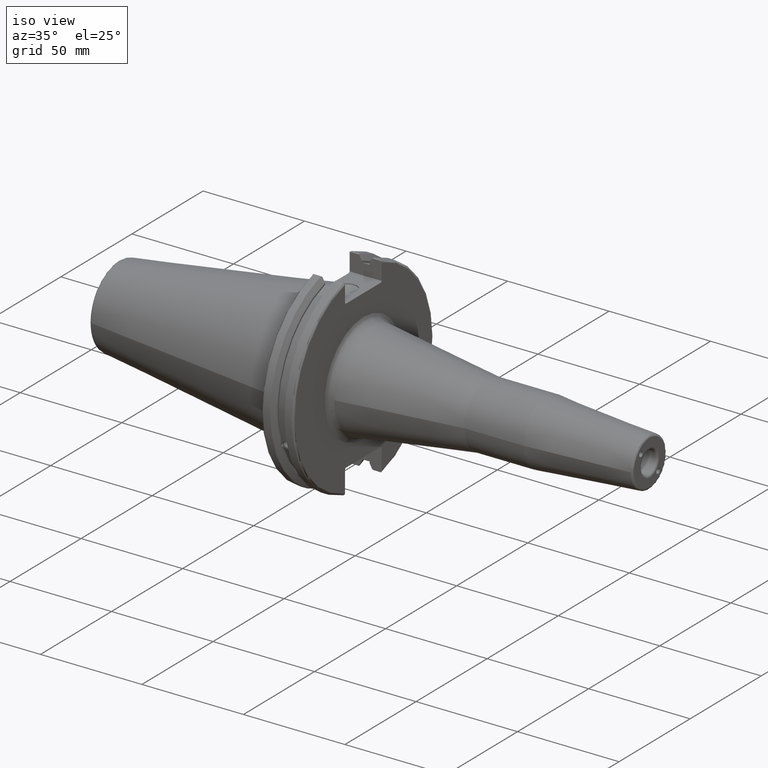
[diagram: clean part render]
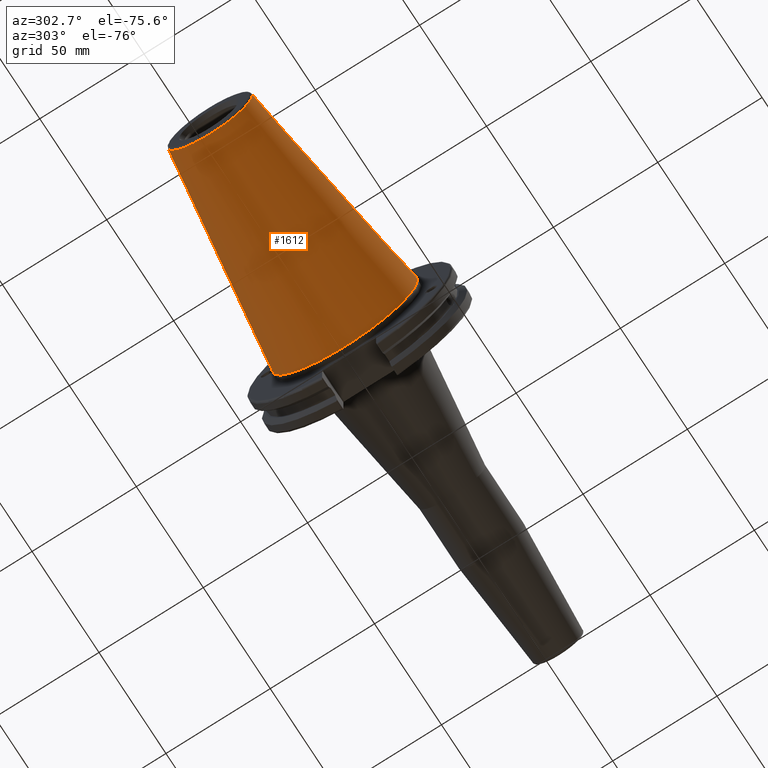
[diagram: tour spotlight — one face highlighted and labeled with its STEP entity id]
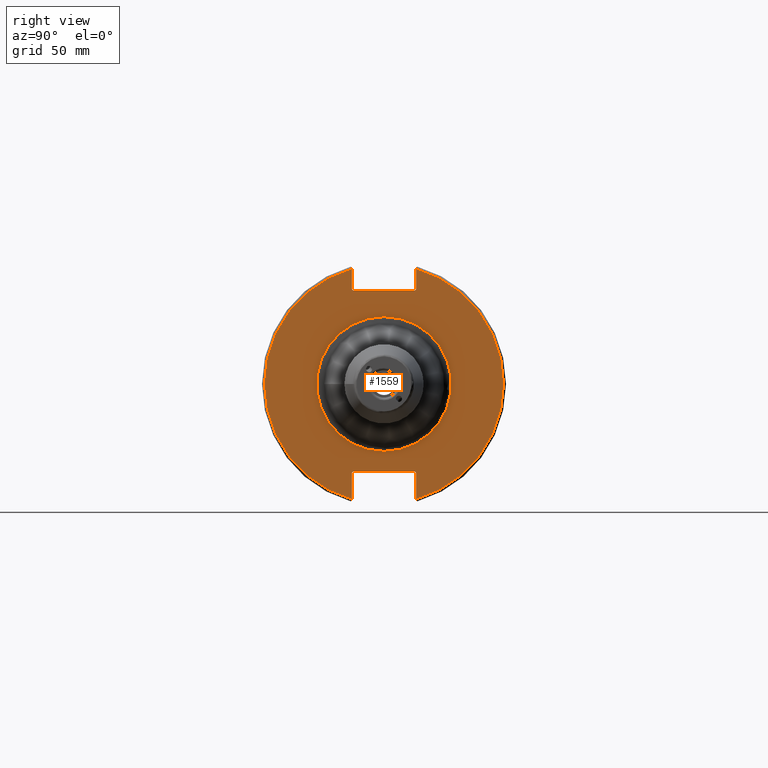
[diagram: tour spotlight — one face highlighted and labeled with its STEP entity id]
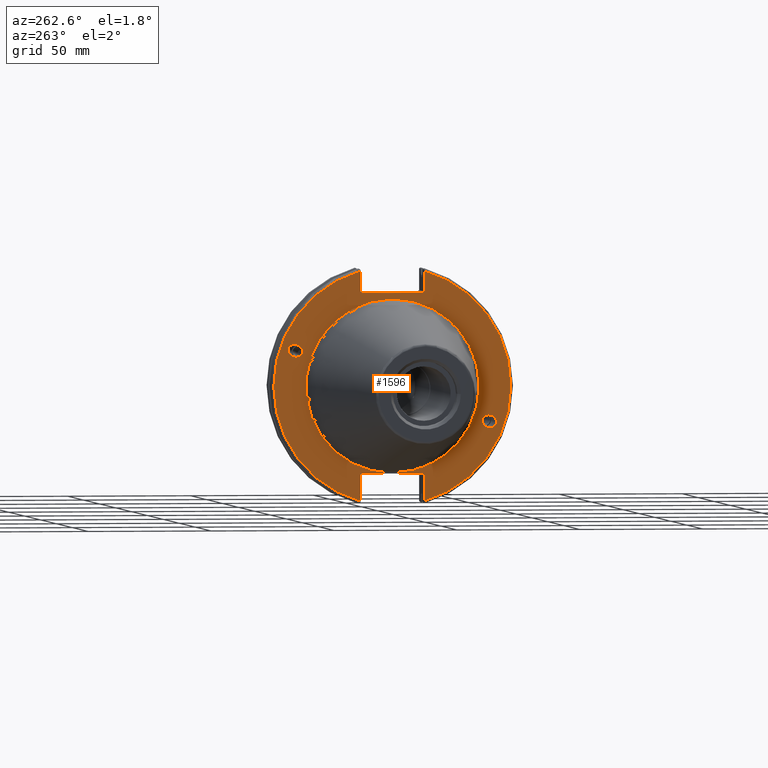
[diagram: tour spotlight — one face highlighted and labeled with its STEP entity id]
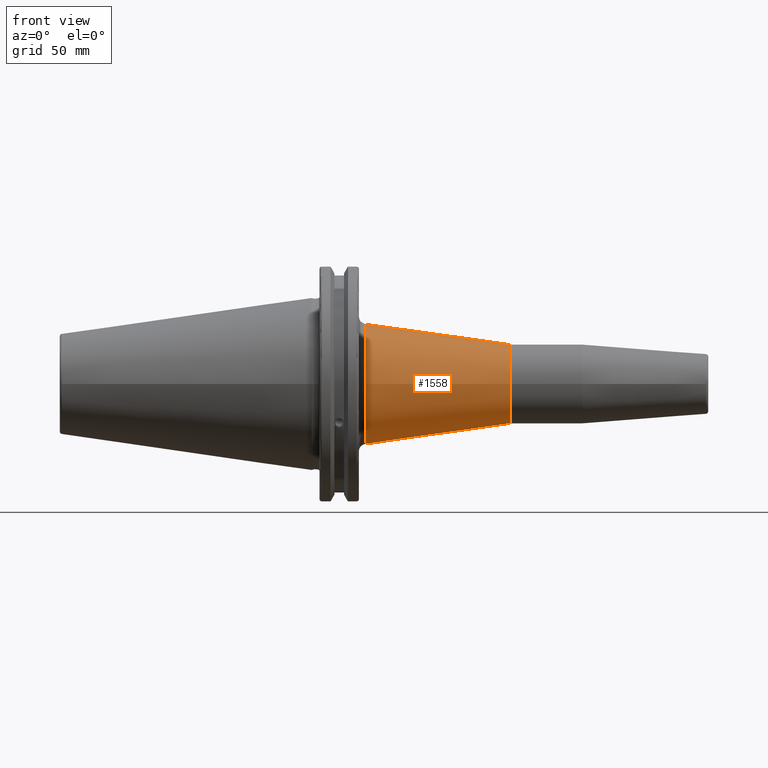
[diagram: tour spotlight — one face highlighted and labeled with its STEP entity id]
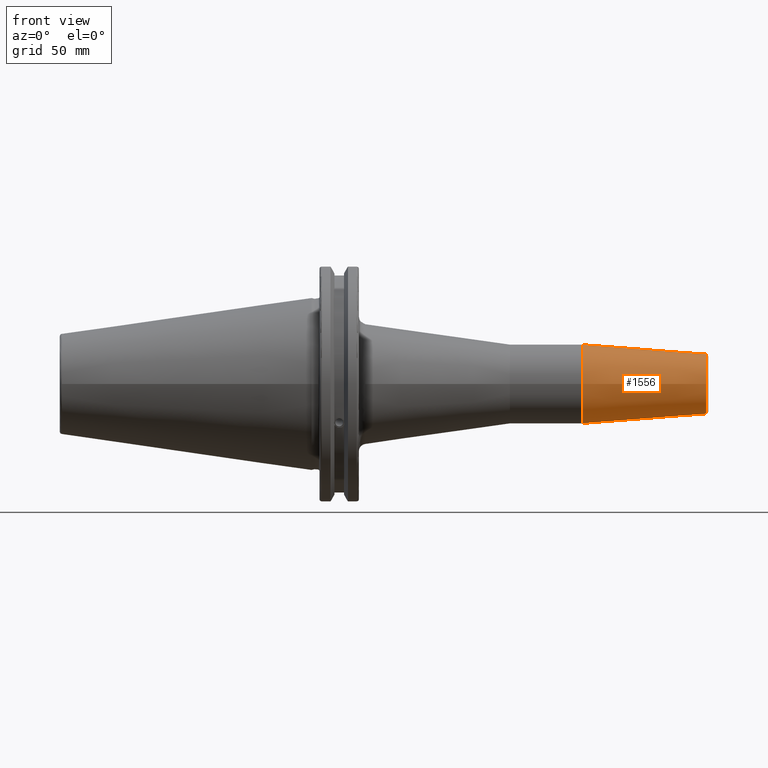
[diagram: tour spotlight — one face highlighted and labeled with its STEP entity id]
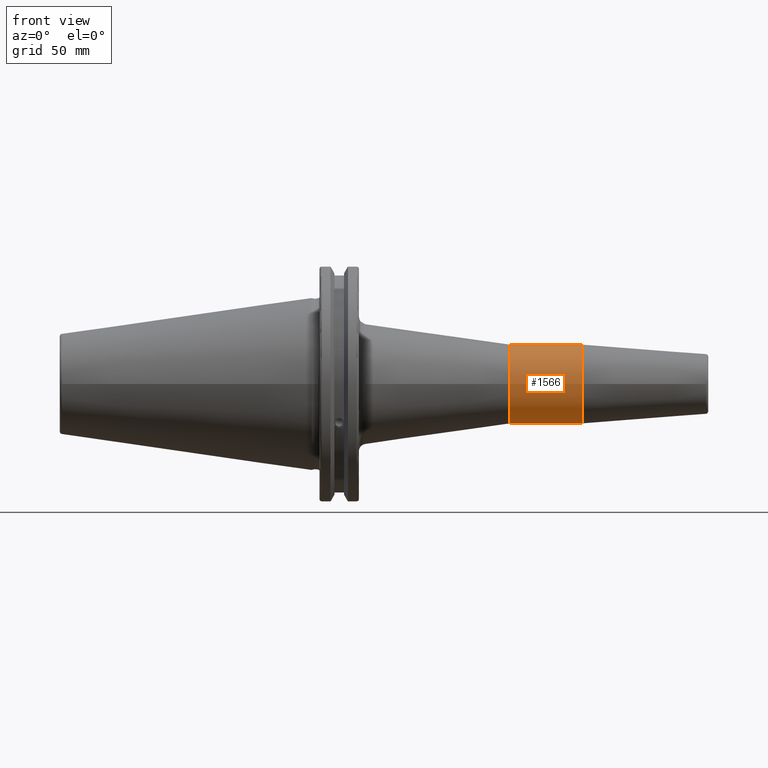
[diagram: tour spotlight — one face highlighted and labeled with its STEP entity id]
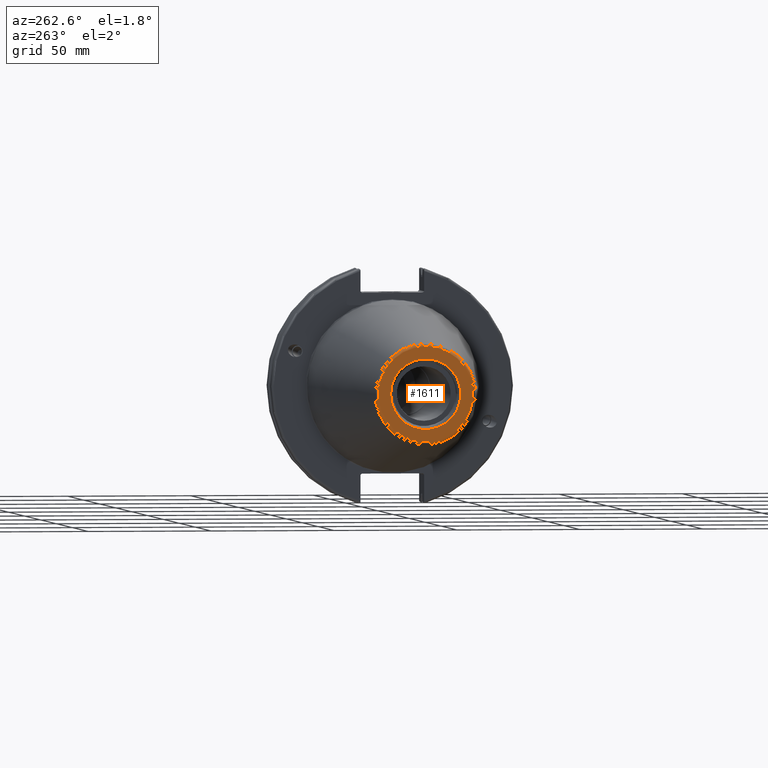
[diagram: tour spotlight — one face highlighted and labeled with its STEP entity id]
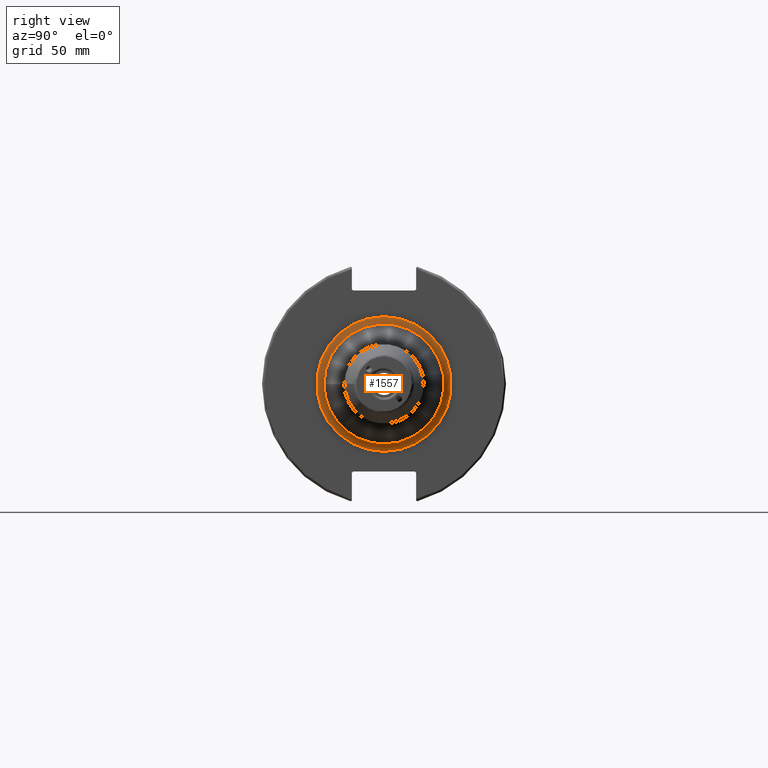
[diagram: tour spotlight — one face highlighted and labeled with its STEP entity id]
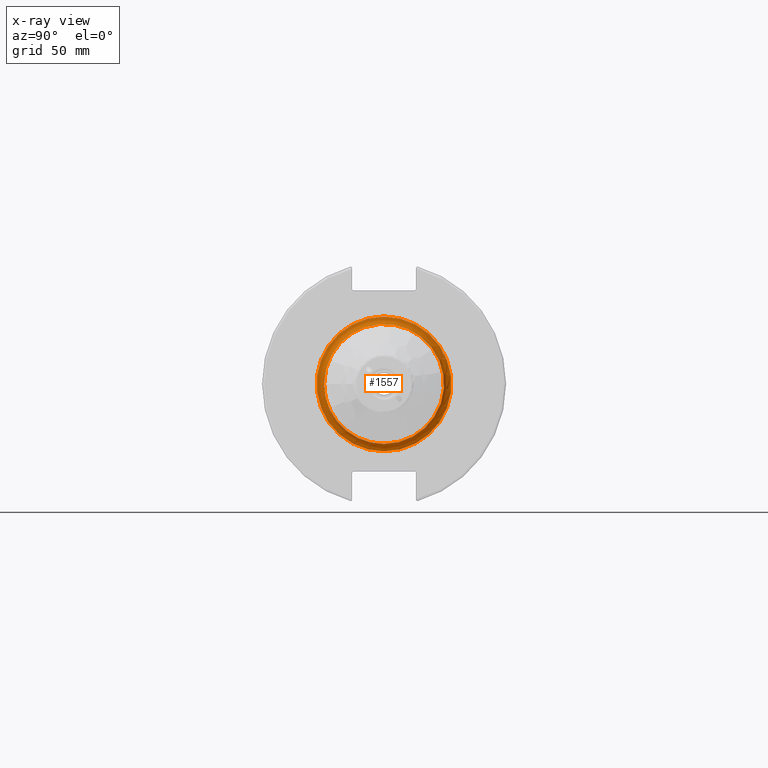
[diagram: x-ray of the same camera — body ghosted, this tour face saturated]
A machine part: a face-by-face anatomy tour. The part has 93 B-rep faces; the first image is the clean iso view, then the 8 largest visible faces are spotlighted one at a time (largest first), each with its STEP entity span.

Face 1 — auxiliary view, entity #1612. In plain terms, the highlighted conical surface has half-angle 8.297 deg.
Definition (entity closure, byte-faithful):
#235=FACE_OUTER_BOUND('',#348,.T.);
#348=EDGE_LOOP('',(#1399,#1400,#1401,#1402,#1403));
#458=LINE('',#3187,#557);
#557=VECTOR('',#2201,27.5166666666666);
#641=CIRCLE('',#1795,20.233121911427);
#642=CIRCLE('',#1796,20.233121911427);
#646=CIRCLE('',#1802,34.925);
#802=VERTEX_POINT('',#3174);
#803=VERTEX_POINT('',#3175);
#806=VERTEX_POINT('',#3185);
#1016=EDGE_CURVE('',#802,#803,#641,.T.);
#1017=EDGE_CURVE('',#803,#802,#642,.T.);
#1021=EDGE_CURVE('',#806,#806,#646,.T.);
#1022=EDGE_CURVE('',#806,#803,#458,.T.);
#1399=ORIENTED_EDGE('',*,*,#1021,.F.);
#1400=ORIENTED_EDGE('',*,*,#1022,.T.);
#1401=ORIENTED_EDGE('',*,*,#1016,.F.);
#1402=ORIENTED_EDGE('',*,*,#1017,.F.);
#1403=ORIENTED_EDGE('',*,*,#1022,.F.);
#1542=CONICAL_SURFACE('',#1801,27.5166666666666,0.14481249823894);
#1612=ADVANCED_FACE('',(#235),#1542,.T.);
#1795=AXIS2_PLACEMENT_3D('',#3176,#2185,#2186);
#1796=AXIS2_PLACEMENT_3D('',#3177,#2187,#2188);
#1801=AXIS2_PLACEMENT_3D('',#3184,#2197,#2198);
#1802=AXIS2_PLACEMENT_3D('',#3186,#2199,#2200);
#2185=DIRECTION('center_axis',(-1.,0.,0.));
#2186=DIRECTION('ref_axis',(0.,-1.,3.06161699786838E-17));
#2187=DIRECTION('center_axis',(-1.,0.,0.));
#2188=DIRECTION('ref_axis',(0.,-1.,3.06161699786838E-17));
#2197=DIRECTION('center_axis',(1.,0.,0.));
#2198=DIRECTION('ref_axis',(0.,1.,0.));
#2199=DIRECTION('center_axis',(1.,0.,0.));
#2200=DIRECTION('ref_axis',(0.,0.,-1.));
#2201=DIRECTION('',(-0.989532981063281,0.144306893071729,1.76724974695192E-17));
#3174=CARTESIAN_POINT('',(-100.744306893072,-2.47784279855872E-15,20.233121911427));
#3175=CARTESIAN_POINT('',(-100.744306893072,-20.233121911427,-2.47784279855872E-15));
#3176=CARTESIAN_POINT('Origin',(-100.744306893072,0.,-3.09730349819841E-15));
#3177=CARTESIAN_POINT('Origin',(-100.744306893072,0.,-3.09730349819841E-15));
#3184=CARTESIAN_POINT('Origin',(-50.8,0.,0.));
#3185=CARTESIAN_POINT('',(-8.88178419700125E-15,-34.925,-4.27707894602213E-15));
#3186=CARTESIAN_POINT('Origin',(0.,0.,0.));
#3187=CARTESIAN_POINT('',(-50.8,-27.5166666666666,-3.3698197756538E-15));

Face 2 — right view, entity #1559. In plain terms, the highlighted planar face has unit normal (1, 0, 0).
Definition (entity closure, byte-faithful):
#72=FACE_BOUND('',#279,.T.);
#92=PLANE('',#1694);
#182=FACE_OUTER_BOUND('',#278,.T.);
#278=EDGE_LOOP('',(#1103,#1104,#1105,#1106,#1107,#1108,#1109,#1110,#1111,
#1112,#1113,#1114));
#279=EDGE_LOOP('',(#1115));
#386=LINE('',#2360,#485);
#387=LINE('',#2362,#486);
#388=LINE('',#2364,#487);
#389=LINE('',#2366,#488);
#390=LINE('',#2368,#489);
#391=LINE('',#2372,#490);
#392=LINE('',#2374,#491);
#393=LINE('',#2376,#492);
#394=LINE('',#2378,#493);
#395=LINE('',#2379,#494);
#485=VECTOR('',#1915,10.);
#486=VECTOR('',#1916,10.);
#487=VECTOR('',#1917,10.);
#488=VECTOR('',#1918,10.);
#489=VECTOR('',#1919,10.);
#490=VECTOR('',#1922,10.);
#491=VECTOR('',#1923,10.);
#492=VECTOR('',#1924,10.);
#493=VECTOR('',#1925,10.);
#494=VECTOR('',#1926,10.);
#591=CIRCLE('',#1690,27.1738240885594);
#594=CIRCLE('',#1695,48.2125);
#595=CIRCLE('',#1696,48.2125);
#674=VERTEX_POINT('',#2347);
#676=VERTEX_POINT('',#2356);
#677=VERTEX_POINT('',#2357);
#678=VERTEX_POINT('',#2359);
#679=VERTEX_POINT('',#2361);
#680=VERTEX_POINT('',#2363);
#681=VERTEX_POINT('',#2365);
#682=VERTEX_POINT('',#2367);
#683=VERTEX_POINT('',#2369);
#684=VERTEX_POINT('',#2371);
#685=VERTEX_POINT('',#2373);
#686=VERTEX_POINT('',#2375);
#687=VERTEX_POINT('',#2377);
#839=EDGE_CURVE('',#674,#674,#591,.T.);
#843=EDGE_CURVE('',#676,#677,#594,.T.);
#844=EDGE_CURVE('',#676,#678,#386,.T.);
#845=EDGE_CURVE('',#679,#678,#387,.T.);
#846=EDGE_CURVE('',#679,#680,#388,.T.);
#847=EDGE_CURVE('',#681,#680,#389,.T.);
#848=EDGE_CURVE('',#681,#682,#390,.T.);
#849=EDGE_CURVE('',#683,#682,#595,.T.);
#850=EDGE_CURVE('',#683,#684,#391,.T.);
#851=EDGE_CURVE('',#685,#684,#392,.T.);
#852=EDGE_CURVE('',#685,#686,#393,.T.);
#853=EDGE_CURVE('',#687,#686,#394,.T.);
#854=EDGE_CURVE('',#687,#677,#395,.T.);
#1103=ORIENTED_EDGE('',*,*,#843,.F.);
#1104=ORIENTED_EDGE('',*,*,#844,.T.);
#1105=ORIENTED_EDGE('',*,*,#845,.F.);
#1106=ORIENTED_EDGE('',*,*,#846,.T.);
#1107=ORIENTED_EDGE('',*,*,#847,.F.);
#1108=ORIENTED_EDGE('',*,*,#848,.T.);
#1109=ORIENTED_EDGE('',*,*,#849,.F.);
#1110=ORIENTED_EDGE('',*,*,#850,.T.);
#1111=ORIENTED_EDGE('',*,*,#851,.F.);
#1112=ORIENTED_EDGE('',*,*,#852,.T.);
#1113=ORIENTED_EDGE('',*,*,#853,.F.);
#1114=ORIENTED_EDGE('',*,*,#854,.T.);
#1115=ORIENTED_EDGE('',*,*,#839,.F.);
#1559=ADVANCED_FACE('',(#182,#72),#92,.T.);
#1690=AXIS2_PLACEMENT_3D('',#2349,#1902,#1903);
#1694=AXIS2_PLACEMENT_3D('',#2355,#1911,#1912);
#1695=AXIS2_PLACEMENT_3D('',#2358,#1913,#1914);
#1696=AXIS2_PLACEMENT_3D('',#2370,#1920,#1921);
#1902=DIRECTION('center_axis',(1.,0.,0.));
#1903=DIRECTION('ref_axis',(0.,-1.,-1.22464679914735E-16));
#1911=DIRECTION('center_axis',(1.,0.,0.));
#1912=DIRECTION('ref_axis',(0.,0.,-1.));
#1913=DIRECTION('center_axis',(-1.,0.,0.));
#1914=DIRECTION('ref_axis',(0.,1.,-6.12323399573677E-17));
#1915=DIRECTION('',(0.,0.,-1.));
#1916=DIRECTION('',(0.,0.707106781186549,0.707106781186546));
#1917=DIRECTION('',(0.,-1.,0.));
#1918=DIRECTION('',(0.,0.707106781186549,-0.707106781186546));
#1919=DIRECTION('',(0.,0.,1.));
#1920=DIRECTION('center_axis',(-1.,0.,0.));
#1921=DIRECTION('ref_axis',(0.,-1.,1.60812264967664E-16));
#1922=DIRECTION('',(0.,0.,1.));
#1923=DIRECTION('',(0.,-0.707106781186549,-0.707106781186546));
#1924=DIRECTION('',(0.,1.,0.));
#1925=DIRECTION('',(0.,-0.707106781186549,0.707106781186546));
#1926=DIRECTION('',(0.,0.,-1.));
#2347=CARTESIAN_POINT('',(19.05,-3.32783366906475E-15,-27.1738240885594));
#2349=CARTESIAN_POINT('Origin',(19.05,0.,0.));
#2355=CARTESIAN_POINT('Origin',(19.05,0.,0.));
#2356=CARTESIAN_POINT('',(19.05,12.95,46.4407434937254));
#2357=CARTESIAN_POINT('',(19.05,12.95,-46.4407434937254));
#2358=CARTESIAN_POINT('Origin',(19.05,0.,0.));
#2359=CARTESIAN_POINT('',(19.05,12.95,38.219));
#2360=CARTESIAN_POINT('',(19.05,12.95,18.8595));
#2361=CARTESIAN_POINT('',(19.05,12.45,37.719));
#2362=CARTESIAN_POINT('',(19.05,0.0327499999999836,25.30175));
#2363=CARTESIAN_POINT('',(19.05,-12.45,37.719));
#2364=CARTESIAN_POINT('',(19.05,0.,37.719));
#2365=CARTESIAN_POINT('',(19.05,-12.95,38.219));
#2366=CARTESIAN_POINT('',(19.05,-0.0327499999999817,25.30175));
#2367=CARTESIAN_POINT('',(19.05,-12.95,46.4407434937254));
#2368=CARTESIAN_POINT('',(19.05,-12.95,18.8595));
#2369=CARTESIAN_POINT('',(19.05,-12.95,-46.4407434937254));
#2370=CARTESIAN_POINT('Origin',(19.05,0.,0.));
#2371=CARTESIAN_POINT('',(19.05,-12.95,-35.806));
#2372=CARTESIAN_POINT('',(19.05,-12.95,-17.653));
#2373=CARTESIAN_POINT('',(19.05,-12.45,-35.306));
#2374=CARTESIAN_POINT('',(19.05,-0.635999999999989,-23.492));
#2375=CARTESIAN_POINT('',(19.05,12.45,-35.306));
#2376=CARTESIAN_POINT('',(19.05,-3.33066907387547E-15,-35.306));
#2377=CARTESIAN_POINT('',(19.05,12.95,-35.806));
#2378=CARTESIAN_POINT('',(19.05,0.635999999999982,-23.492));
#2379=CARTESIAN_POINT('',(19.05,12.95,-17.653));

Face 3 — auxiliary view, entity #1596. In plain terms, the highlighted planar face has unit normal (-1, 0, 0).
Definition (entity closure, byte-faithful):
#85=FACE_BOUND('',#329,.T.);
#86=FACE_BOUND('',#330,.T.);
#87=FACE_BOUND('',#331,.T.);
#103=PLANE('',#1772);
#139=ELLIPSE('',#1724,3.05193647190364,2.5);
#140=ELLIPSE('',#1758,3.05193647190364,2.5);
#219=FACE_OUTER_BOUND('',#328,.T.);
#328=EDGE_LOOP('',(#1292,#1293,#1294,#1295,#1296,#1297,#1298,#1299,#1300,
#1301,#1302,#1303));
#329=EDGE_LOOP('',(#1304));
#330=EDGE_LOOP('',(#1305));
#331=EDGE_LOOP('',(#1306));
#431=LINE('',#2961,#530);
#432=LINE('',#2963,#531);
#433=LINE('',#2965,#532);
#434=LINE('',#2967,#533);
#435=LINE('',#2969,#534);
#436=LINE('',#2973,#535);
#437=LINE('',#2975,#536);
#438=LINE('',#2977,#537);
#439=LINE('',#2979,#538);
#440=LINE('',#2980,#539);
#530=VECTOR('',#2116,10.);
#531=VECTOR('',#2117,10.);
#532=VECTOR('',#2118,10.);
#533=VECTOR('',#2119,10.);
#534=VECTOR('',#2120,10.);
#535=VECTOR('',#2123,10.);
#536=VECTOR('',#2124,10.);
#537=VECTOR('',#2125,10.);
#538=VECTOR('',#2126,10.);
#539=VECTOR('',#2127,10.);
#631=CIRCLE('',#1770,35.125);
#633=CIRCLE('',#1773,48.2125);
#634=CIRCLE('',#1774,48.2125);
#716=VERTEX_POINT('',#2632);
#756=VERTEX_POINT('',#2929);
#763=VERTEX_POINT('',#2952);
#764=VERTEX_POINT('',#2957);
#765=VERTEX_POINT('',#2958);
#766=VERTEX_POINT('',#2960);
#767=VERTEX_POINT('',#2962);
#768=VERTEX_POINT('',#2964);
#769=VERTEX_POINT('',#2966);
#770=VERTEX_POINT('',#2968);
#771=VERTEX_POINT('',#2970);
#772=VERTEX_POINT('',#2972);
#773=VERTEX_POINT('',#2974);
#774=VERTEX_POINT('',#2976);
#775=VERTEX_POINT('',#2978);
#893=EDGE_CURVE('',#716,#716,#139,.T.);
#946=EDGE_CURVE('',#756,#756,#140,.T.);
#957=EDGE_CURVE('',#763,#763,#631,.T.);
#959=EDGE_CURVE('',#764,#765,#633,.T.);
#960=EDGE_CURVE('',#764,#766,#431,.T.);
#961=EDGE_CURVE('',#767,#766,#432,.T.);
#962=EDGE_CURVE('',#767,#768,#433,.T.);
#963=EDGE_CURVE('',#769,#768,#434,.T.);
#964=EDGE_CURVE('',#769,#770,#435,.T.);
#965=EDGE_CURVE('',#771,#770,#634,.T.);
#966=EDGE_CURVE('',#771,#772,#436,.T.);
#967=EDGE_CURVE('',#773,#772,#437,.T.);
#968=EDGE_CURVE('',#773,#774,#438,.T.);
#969=EDGE_CURVE('',#775,#774,#439,.T.);
#970=EDGE_CURVE('',#775,#765,#440,.T.);
#1292=ORIENTED_EDGE('',*,*,#959,.F.);
#1293=ORIENTED_EDGE('',*,*,#960,.T.);
#1294=ORIENTED_EDGE('',*,*,#961,.F.);
#1295=ORIENTED_EDGE('',*,*,#962,.T.);
#1296=ORIENTED_EDGE('',*,*,#963,.F.);
#1297=ORIENTED_EDGE('',*,*,#964,.T.);
#1298=ORIENTED_EDGE('',*,*,#965,.F.);
#1299=ORIENTED_EDGE('',*,*,#966,.T.);
#1300=ORIENTED_EDGE('',*,*,#967,.F.);
#1301=ORIENTED_EDGE('',*,*,#968,.T.);
#1302=ORIENTED_EDGE('',*,*,#969,.F.);
#1303=ORIENTED_EDGE('',*,*,#970,.T.);
#1304=ORIENTED_EDGE('',*,*,#893,.T.);
#1305=ORIENTED_EDGE('',*,*,#946,.T.);
#1306=ORIENTED_EDGE('',*,*,#957,.F.);
#1596=ADVANCED_FACE('',(#219,#85,#86,#87),#103,.T.);
#1724=AXIS2_PLACEMENT_3D('',#2634,#1996,#1997);
#1758=AXIS2_PLACEMENT_3D('',#2931,#2080,#2081);
#1770=AXIS2_PLACEMENT_3D('',#2954,#2108,#2109);
#1772=AXIS2_PLACEMENT_3D('',#2956,#2112,#2113);
#1773=AXIS2_PLACEMENT_3D('',#2959,#2114,#2115);
#1774=AXIS2_PLACEMENT_3D('',#2971,#2121,#2122);
#1996=DIRECTION('center_axis',(1.,0.,0.));
#1997=DIRECTION('ref_axis',(0.,-0.939692620785907,-0.342020143325671));
#2080=DIRECTION('center_axis',(1.,0.,0.));
#2081=DIRECTION('ref_axis',(0.,0.939692620785907,0.342020143325672));
#2108=DIRECTION('center_axis',(-1.,0.,0.));
#2109=DIRECTION('ref_axis',(0.,-1.,1.83697019872103E-16));
#2112=DIRECTION('center_axis',(-1.,0.,0.));
#2113=DIRECTION('ref_axis',(0.,0.,1.));
#2114=DIRECTION('center_axis',(1.,0.,0.));
#2115=DIRECTION('ref_axis',(0.,-1.,1.60812264967664E-16));
#2116=DIRECTION('',(0.,0.,-1.));
#2117=DIRECTION('',(0.,-0.707106781186549,0.707106781186546));
#2118=DIRECTION('',(0.,1.,0.));
#2119=DIRECTION('',(0.,-0.707106781186549,-0.707106781186546));
#2120=DIRECTION('',(0.,0.,1.));
#2121=DIRECTION('center_axis',(1.,0.,0.));
#2122=DIRECTION('ref_axis',(0.,1.,-6.12323399573677E-17));
#2123=DIRECTION('',(0.,0.,1.));
#2124=DIRECTION('',(0.,0.707106781186549,-0.707106781186546));
#2125=DIRECTION('',(0.,-1.,0.));
#2126=DIRECTION('',(0.,0.707106781186549,0.707106781186546));
#2127=DIRECTION('',(0.,0.,-1.));
#2632=CARTESIAN_POINT('',(3.175,-36.5992078912529,-13.3210222701368));
#2634=CARTESIAN_POINT('Origin',(3.175,-39.4670900730082,-14.3648460196781));
#2929=CARTESIAN_POINT('',(3.175,36.5992078912529,13.3210222701368));
#2931=CARTESIAN_POINT('Origin',(3.175,39.4670900730082,14.3648460196781));
#2952=CARTESIAN_POINT('',(3.175,-4.30157188200508E-15,35.125));
#2954=CARTESIAN_POINT('Origin',(3.175,0.,0.));
#2956=CARTESIAN_POINT('Origin',(3.175,49.2125,0.));
#2957=CARTESIAN_POINT('',(3.175,-12.95,46.4407434937254));
#2958=CARTESIAN_POINT('',(3.175,-12.95,-46.4407434937254));
#2959=CARTESIAN_POINT('Origin',(3.175,0.,0.));
#2960=CARTESIAN_POINT('',(3.175,-12.95,38.219));
#2961=CARTESIAN_POINT('',(3.175,-12.95,18.8595));
#2962=CARTESIAN_POINT('',(3.175,-12.45,37.719));
#2963=CARTESIAN_POINT('',(3.175,12.2703750000001,12.998625));
#2964=CARTESIAN_POINT('',(3.175,12.45,37.719));
#2965=CARTESIAN_POINT('',(3.175,24.60625,37.719));
#2966=CARTESIAN_POINT('',(3.175,12.95,38.219));
#2967=CARTESIAN_POINT('',(3.175,12.335875,37.604875));
#2968=CARTESIAN_POINT('',(3.175,12.95,46.4407434937254));
#2969=CARTESIAN_POINT('',(3.175,12.95,18.8595));
#2970=CARTESIAN_POINT('',(3.175,12.95,-46.4407434937254));
#2971=CARTESIAN_POINT('Origin',(3.175,0.,0.));
#2972=CARTESIAN_POINT('',(3.175,12.95,-35.806));
#2973=CARTESIAN_POINT('',(3.175,12.95,-17.653));
#2974=CARTESIAN_POINT('',(3.175,12.45,-35.306));
#2975=CARTESIAN_POINT('',(3.175,12.939125,-35.795125));
#2976=CARTESIAN_POINT('',(3.175,-12.45,-35.306));
#2977=CARTESIAN_POINT('',(3.175,24.60625,-35.306));
#2978=CARTESIAN_POINT('',(3.175,-12.95,-35.806));
#2979=CARTESIAN_POINT('',(3.175,11.6671250000001,-11.188875));
#2980=CARTESIAN_POINT('',(3.175,-12.95,-17.653));

Face 4 — front view, entity #1558. In plain terms, the highlighted conical surface has half-angle 8 deg.
Definition (entity closure, byte-faithful):
#181=FACE_OUTER_BOUND('',#277,.T.);
#277=EDGE_LOOP('',(#1098,#1099,#1100,#1101,#1102));
#385=LINE('',#2354,#484);
#484=VECTOR('',#1910,20.2829819375554);
#589=CIRCLE('',#1688,24.2030198823347);
#592=CIRCLE('',#1691,24.2030198823347);
#593=CIRCLE('',#1693,16.);
#672=VERTEX_POINT('',#2344);
#673=VERTEX_POINT('',#2345);
#675=VERTEX_POINT('',#2352);
#837=EDGE_CURVE('',#672,#673,#589,.T.);
#840=EDGE_CURVE('',#673,#672,#592,.T.);
#841=EDGE_CURVE('',#675,#675,#593,.T.);
#842=EDGE_CURVE('',#675,#672,#385,.T.);
#1098=ORIENTED_EDGE('',*,*,#841,.F.);
#1099=ORIENTED_EDGE('',*,*,#842,.T.);
#1100=ORIENTED_EDGE('',*,*,#840,.F.);
#1101=ORIENTED_EDGE('',*,*,#837,.F.);
#1102=ORIENTED_EDGE('',*,*,#842,.F.);
#1534=CONICAL_SURFACE('',#1692,20.2829819375554,0.139626340159546);
#1558=ADVANCED_FACE('',(#181),#1534,.T.);
#1688=AXIS2_PLACEMENT_3D('',#2346,#1898,#1899);
#1691=AXIS2_PLACEMENT_3D('',#2350,#1904,#1905);
#1692=AXIS2_PLACEMENT_3D('',#2351,#1906,#1907);
#1693=AXIS2_PLACEMENT_3D('',#2353,#1908,#1909);
#1898=DIRECTION('center_axis',(-1.,0.,0.));
#1899=DIRECTION('ref_axis',(0.,-1.,-1.22464679914735E-16));
#1904=DIRECTION('center_axis',(-1.,0.,0.));
#1905=DIRECTION('ref_axis',(0.,-1.,-1.22464679914735E-16));
#1906=DIRECTION('center_axis',(-1.,0.,0.));
#1907=DIRECTION('ref_axis',(0.,1.,0.));
#1908=DIRECTION('center_axis',(1.,0.,0.));
#1909=DIRECTION('ref_axis',(0.,0.,-1.));
#1910=DIRECTION('',(-0.99026806874157,-0.139173100960065,-1.70437892618155E-17));
#2344=CARTESIAN_POINT('',(21.6324806971198,-24.2030198823347,-2.9640150828601E-15));
#2345=CARTESIAN_POINT('',(21.6324806971198,-2.9640150828601E-15,-24.2030198823347));
#2346=CARTESIAN_POINT('Origin',(21.6324806971198,0.,4.93038065763132E-31));
#2350=CARTESIAN_POINT('Origin',(21.6324806971198,0.,4.93038065763132E-31));
#2351=CARTESIAN_POINT('Origin',(49.525,0.,0.));
#2352=CARTESIAN_POINT('',(80.,-16.,-1.95943487863577E-15));
#2353=CARTESIAN_POINT('Origin',(80.,0.,0.));
#2354=CARTESIAN_POINT('',(49.525,-20.2829819375554,-2.48394889069908E-15));

Face 5 — front view, entity #1556. In plain terms, the highlighted conical surface has half-angle 4.5 deg.
Definition (entity closure, byte-faithful):
#179=FACE_OUTER_BOUND('',#275,.T.);
#275=EDGE_LOOP('',(#1088,#1089,#1090,#1091,#1092));
#384=LINE('',#2341,#483);
#483=VECTOR('',#1893,14.);
#586=CIRCLE('',#1683,12.0725268420749);
#587=CIRCLE('',#1684,12.0725268420749);
#588=CIRCLE('',#1686,16.);
#669=VERTEX_POINT('',#2334);
#670=VERTEX_POINT('',#2336);
#671=VERTEX_POINT('',#2340);
#833=EDGE_CURVE('',#669,#670,#586,.T.);
#834=EDGE_CURVE('',#670,#669,#587,.T.);
#835=EDGE_CURVE('',#670,#671,#384,.T.);
#836=EDGE_CURVE('',#671,#671,#588,.T.);
#1088=ORIENTED_EDGE('',*,*,#834,.F.);
#1089=ORIENTED_EDGE('',*,*,#835,.T.);
#1090=ORIENTED_EDGE('',*,*,#836,.T.);
#1091=ORIENTED_EDGE('',*,*,#835,.F.);
#1092=ORIENTED_EDGE('',*,*,#833,.F.);
#1533=CONICAL_SURFACE('',#1685,14.,0.0785398163397446);
#1556=ADVANCED_FACE('',(#179),#1533,.T.);
#1683=AXIS2_PLACEMENT_3D('',#2337,#1887,#1888);
#1684=AXIS2_PLACEMENT_3D('',#2338,#1889,#1890);
#1685=AXIS2_PLACEMENT_3D('',#2339,#1891,#1892);
#1686=AXIS2_PLACEMENT_3D('',#2342,#1894,#1895);
#1887=DIRECTION('center_axis',(1.,0.,0.));
#1888=DIRECTION('ref_axis',(0.,-1.,3.06161699786838E-17));
#1889=DIRECTION('center_axis',(1.,0.,0.));
#1890=DIRECTION('ref_axis',(0.,-1.,3.06161699786838E-17));
#1891=DIRECTION('center_axis',(-1.,0.,0.));
#1892=DIRECTION('ref_axis',(0.,1.,0.));
#1893=DIRECTION('',(-0.996917333733128,-0.0784590957278447,-9.60846804471007E-18));
#1894=DIRECTION('center_axis',(1.,0.,0.));
#1895=DIRECTION('ref_axis',(0.,0.,-1.));
#2334=CARTESIAN_POINT('',(159.078459095728,-1.47845813547676E-15,12.0725268420749));
#2336=CARTESIAN_POINT('',(159.078459095728,-12.0725268420749,-1.47845813547676E-15));
#2337=CARTESIAN_POINT('Origin',(159.078459095728,0.,-1.84807266934594E-15));
#2338=CARTESIAN_POINT('Origin',(159.078459095728,0.,-1.84807266934594E-15));
#2339=CARTESIAN_POINT('Origin',(134.58759052765,0.,0.));
#2340=CARTESIAN_POINT('',(109.175181055301,-16.,-1.95943487863577E-15));
#2341=CARTESIAN_POINT('',(134.58759052765,-14.,-1.71450551880629E-15));
#2342=CARTESIAN_POINT('Origin',(109.175181055301,0.,0.));

Face 6 — front view, entity #1566. In plain terms, the highlighted cylindrical surface (bore or boss wall) has radius 16 mm, axis along (1, 0, 0).
Definition (entity closure, byte-faithful):
#147=CYLINDRICAL_SURFACE('',#1710,16.);
#189=FACE_OUTER_BOUND('',#288,.T.);
#288=EDGE_LOOP('',(#1138,#1139,#1140,#1141));
#400=LINE('',#2405,#499);
#499=VECTOR('',#1959,16.);
#588=CIRCLE('',#1686,16.);
#593=CIRCLE('',#1693,16.);
#671=VERTEX_POINT('',#2340);
#675=VERTEX_POINT('',#2352);
#836=EDGE_CURVE('',#671,#671,#588,.T.);
#841=EDGE_CURVE('',#675,#675,#593,.T.);
#866=EDGE_CURVE('',#671,#675,#400,.T.);
#1138=ORIENTED_EDGE('',*,*,#836,.F.);
#1139=ORIENTED_EDGE('',*,*,#866,.T.);
#1140=ORIENTED_EDGE('',*,*,#841,.T.);
#1141=ORIENTED_EDGE('',*,*,#866,.F.);
#1566=ADVANCED_FACE('',(#189),#147,.T.);
#1686=AXIS2_PLACEMENT_3D('',#2342,#1894,#1895);
#1693=AXIS2_PLACEMENT_3D('',#2353,#1908,#1909);
#1710=AXIS2_PLACEMENT_3D('',#2404,#1957,#1958);
#1894=DIRECTION('center_axis',(1.,0.,0.));
#1895=DIRECTION('ref_axis',(0.,0.,-1.));
#1908=DIRECTION('center_axis',(1.,0.,0.));
#1909=DIRECTION('ref_axis',(0.,0.,-1.));
#1957=DIRECTION('center_axis',(1.,0.,0.));
#1958=DIRECTION('ref_axis',(0.,1.,0.));
#1959=DIRECTION('',(-1.,0.,0.));
#2340=CARTESIAN_POINT('',(109.175181055301,-16.,-1.95943487863577E-15));
#2342=CARTESIAN_POINT('Origin',(109.175181055301,0.,0.));
#2352=CARTESIAN_POINT('',(80.,-16.,-1.95943487863577E-15));
#2353=CARTESIAN_POINT('Origin',(80.,0.,0.));
#2404=CARTESIAN_POINT('Origin',(94.5875905276505,0.,0.));
#2405=CARTESIAN_POINT('',(94.5875905276505,-16.,-1.95943487863577E-15));

Face 7 — auxiliary view, entity #1611. In plain terms, the highlighted planar face has unit normal (-1, 0, 0).
Definition (entity closure, byte-faithful):
#88=FACE_BOUND('',#347,.T.);
#111=PLANE('',#1799);
#234=FACE_OUTER_BOUND('',#346,.T.);
#346=EDGE_LOOP('',(#1397));
#347=EDGE_LOOP('',(#1398));
#644=CIRCLE('',#1798,19.2435889303637);
#645=CIRCLE('',#1800,14.2875);
#804=VERTEX_POINT('',#3178);
#805=VERTEX_POINT('',#3182);
#1019=EDGE_CURVE('',#804,#804,#644,.T.);
#1020=EDGE_CURVE('',#805,#805,#645,.T.);
#1397=ORIENTED_EDGE('',*,*,#1019,.F.);
#1398=ORIENTED_EDGE('',*,*,#1020,.T.);
#1611=ADVANCED_FACE('',(#234,#88),#111,.T.);
#1798=AXIS2_PLACEMENT_3D('',#3180,#2191,#2192);
#1799=AXIS2_PLACEMENT_3D('',#3181,#2193,#2194);
#1800=AXIS2_PLACEMENT_3D('',#3183,#2195,#2196);
#2191=DIRECTION('center_axis',(1.,0.,0.));
#2192=DIRECTION('ref_axis',(0.,-1.,1.83697019872103E-16));
#2193=DIRECTION('center_axis',(-1.,0.,0.));
#2194=DIRECTION('ref_axis',(0.,0.,1.));
#2195=DIRECTION('center_axis',(1.,0.,0.));
#2196=DIRECTION('ref_axis',(0.,0.,-1.));
#3178=CARTESIAN_POINT('',(-101.6,-2.35665995876774E-15,19.2435889303637));
#3180=CARTESIAN_POINT('Origin',(-101.6,0.,0.));
#3181=CARTESIAN_POINT('Origin',(-101.6,20.1083333333333,0.));
#3182=CARTESIAN_POINT('',(-101.6,-14.2875,-1.74971411428178E-15));
#3183=CARTESIAN_POINT('Origin',(-101.6,0.,0.));

Face 8 — right view, entity #1557. An x-ray twin of the same camera follows (body ghosted, this face saturated) — the face is partly hidden behind the body. In plain terms, the highlighted toroidal blend (fillet) surface has major radius 27.1738 mm and minor (blend) radius 3 mm.
Definition (entity closure, byte-faithful):
#130=TOROIDAL_SURFACE('',#1687,27.1738240885594,3.);
#180=FACE_OUTER_BOUND('',#276,.T.);
#276=EDGE_LOOP('',(#1093,#1094,#1095,#1096,#1097));
#589=CIRCLE('',#1688,24.2030198823347);
#590=CIRCLE('',#1689,3.);
#591=CIRCLE('',#1690,27.1738240885594);
#592=CIRCLE('',#1691,24.2030198823347);
#672=VERTEX_POINT('',#2344);
#673=VERTEX_POINT('',#2345);
#674=VERTEX_POINT('',#2347);
#837=EDGE_CURVE('',#672,#673,#589,.T.);
#838=EDGE_CURVE('',#673,#674,#590,.T.);
#839=EDGE_CURVE('',#674,#674,#591,.T.);
#840=EDGE_CURVE('',#673,#672,#592,.T.);
#1093=ORIENTED_EDGE('',*,*,#837,.T.);
#1094=ORIENTED_EDGE('',*,*,#838,.T.);
#1095=ORIENTED_EDGE('',*,*,#839,.T.);
#1096=ORIENTED_EDGE('',*,*,#838,.F.);
#1097=ORIENTED_EDGE('',*,*,#840,.T.);
#1557=ADVANCED_FACE('',(#180),#130,.F.);
#1687=AXIS2_PLACEMENT_3D('',#2343,#1896,#1897);
#1688=AXIS2_PLACEMENT_3D('',#2346,#1898,#1899);
#1689=AXIS2_PLACEMENT_3D('',#2348,#1900,#1901);
#1690=AXIS2_PLACEMENT_3D('',#2349,#1902,#1903);
#1691=AXIS2_PLACEMENT_3D('',#2350,#1904,#1905);
#1896=DIRECTION('center_axis',(-1.,0.,0.));
#1897=DIRECTION('ref_axis',(0.,0.,1.));
#1898=DIRECTION('center_axis',(-1.,0.,0.));
#1899=DIRECTION('ref_axis',(0.,-1.,-1.22464679914735E-16));
#1900=DIRECTION('center_axis',(0.,-1.,1.22464679914735E-16));
#1901=DIRECTION('ref_axis',(0.,-1.22464679914735E-16,-1.));
#1902=DIRECTION('center_axis',(1.,0.,0.));
#1903=DIRECTION('ref_axis',(0.,-1.,-1.22464679914735E-16));
#1904=DIRECTION('center_axis',(-1.,0.,0.));
#1905=DIRECTION('ref_axis',(0.,-1.,-1.22464679914735E-16));
#2343=CARTESIAN_POINT('Origin',(22.05,0.,0.));
#2344=CARTESIAN_POINT('',(21.6324806971198,-24.2030198823347,-2.9640150828601E-15));
#2345=CARTESIAN_POINT('',(21.6324806971198,-2.9640150828601E-15,-24.2030198823347));
#2346=CARTESIAN_POINT('Origin',(21.6324806971198,0.,4.93038065763132E-31));
#2347=CARTESIAN_POINT('',(19.05,-3.32783366906475E-15,-27.1738240885594));
#2348=CARTESIAN_POINT('Origin',(22.05,-3.32783366906475E-15,-27.1738240885594));
#2349=CARTESIAN_POINT('Origin',(19.05,0.,0.));
#2350=CARTESIAN_POINT('Origin',(21.6324806971198,0.,4.93038065763132E-31));